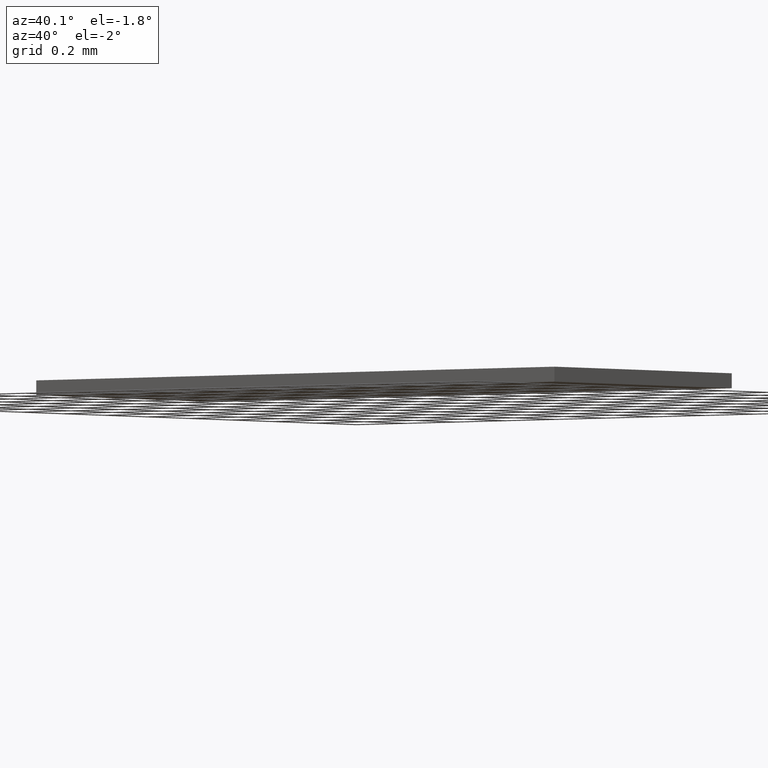
[diagram: clean part render]
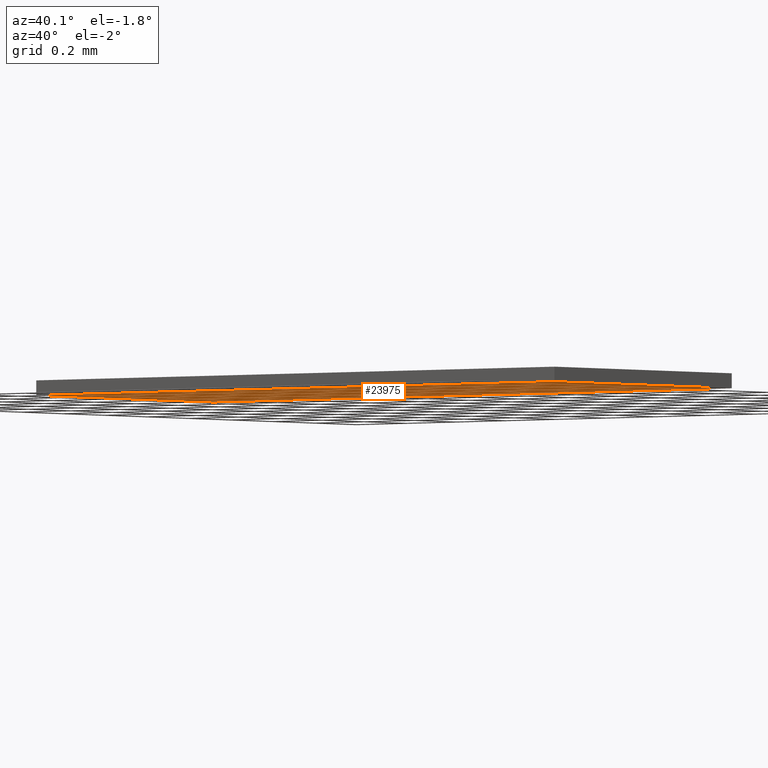
[diagram: same view with one face highlighted and labeled with its STEP entity id]
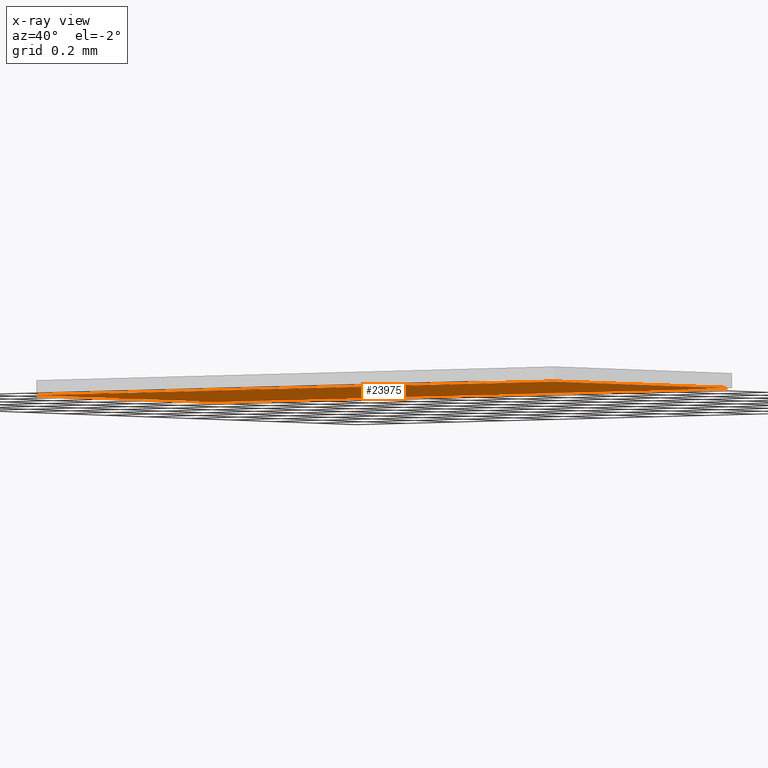
[diagram: x-ray of the same camera — body ghosted, the highlighted face saturated]
A machine part, auxiliary view. The second image highlights one B-rep face of the part: STEP entity #23975.
The next image is the same camera in x-ray: the body ghosted, the highlighted face saturated — about 0% of this face is hidden behind the body in this view.
In plain terms, the highlighted planar face has unit normal (0, 0, 1).
Its self-contained STEP definition (entity closure, byte-faithful):
#22762=CARTESIAN_POINT('',(0.081889763779528,0.033267716535433,0.0));
#22763=VERTEX_POINT('',#22762);
#22770=CARTESIAN_POINT('',(1.507752E-016,0.033267716535433,0.0));
#22771=VERTEX_POINT('',#22770);
#22772=CARTESIAN_POINT('',(0.081889763779528,0.033267716535433,0.0));
#22773=DIRECTION('',(-1.0,0.0,0.0));
#22774=VECTOR('',#22773,0.081889763779528);
#22775=LINE('',#22772,#22774);
#22776=EDGE_CURVE('',#22763,#22771,#22775,.T.);
#22793=CARTESIAN_POINT('',(0.081889763779528,2.005721E-017,0.0));
#22794=VERTEX_POINT('',#22793);
#22801=CARTESIAN_POINT('',(0.081889763779528,2.005721E-017,0.0));
#22802=DIRECTION('',(0.0,1.0,0.0));
#22803=VECTOR('',#22802,0.033267716535433);
#22804=LINE('',#22801,#22803);
#22805=EDGE_CURVE('',#22794,#22763,#22804,.T.);
#23929=CARTESIAN_POINT('',(0.0,0.0,0.0));
#23930=VERTEX_POINT('',#23929);
#23937=CARTESIAN_POINT('',(0.0,0.0,0.0));
#23938=DIRECTION('',(1.0,0.0,0.0));
#23939=VECTOR('',#23938,0.081889763779528);
#23940=LINE('',#23937,#23939);
#23941=EDGE_CURVE('',#23930,#22794,#23940,.T.);
#23954=CARTESIAN_POINT('',(1.507752E-016,0.033267716535433,0.0));
#23955=DIRECTION('',(0.0,-1.0,0.0));
#23956=VECTOR('',#23955,0.033267716535433);
#23957=LINE('',#23954,#23956);
#23958=EDGE_CURVE('',#22771,#23930,#23957,.T.);
#23964=CARTESIAN_POINT('',(0.040944881889764,0.016633858267717,0.0));
#23965=DIRECTION('',(0.0,0.0,1.0));
#23966=DIRECTION('',(1.0,0.0,0.0));
#23967=AXIS2_PLACEMENT_3D('',#23964,#23965,#23966);
#23968=PLANE('',#23967);
#23969=ORIENTED_EDGE('',*,*,#22776,.F.);
#23970=ORIENTED_EDGE('',*,*,#22805,.F.);
#23971=ORIENTED_EDGE('',*,*,#23941,.F.);
#23972=ORIENTED_EDGE('',*,*,#23958,.F.);
#23973=EDGE_LOOP('',(#23969,#23970,#23971,#23972));
#23974=FACE_OUTER_BOUND('',#23973,.T.);
#23975=ADVANCED_FACE('',(#23974),#23968,.F.);